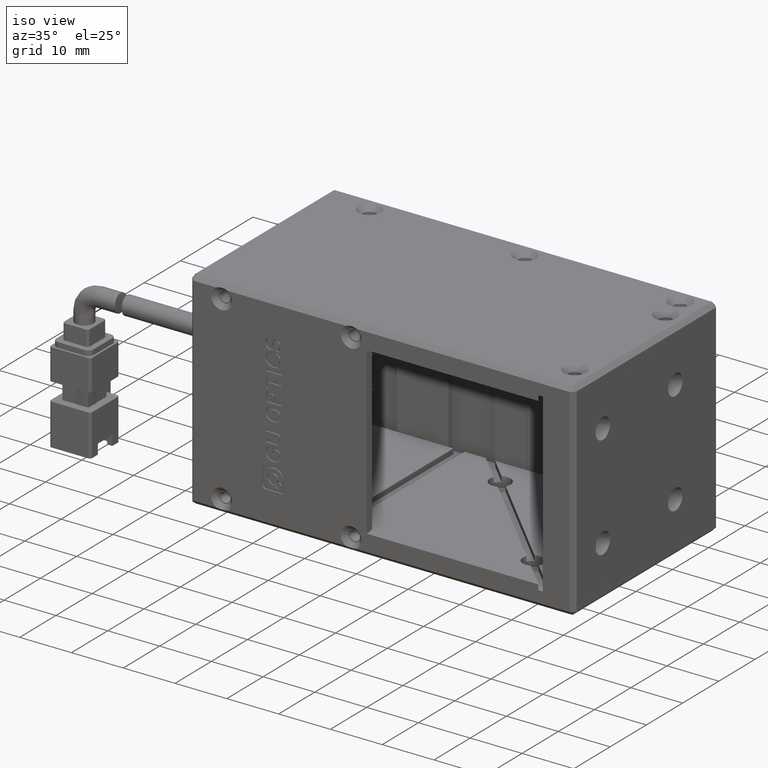
[diagram: clean part render]
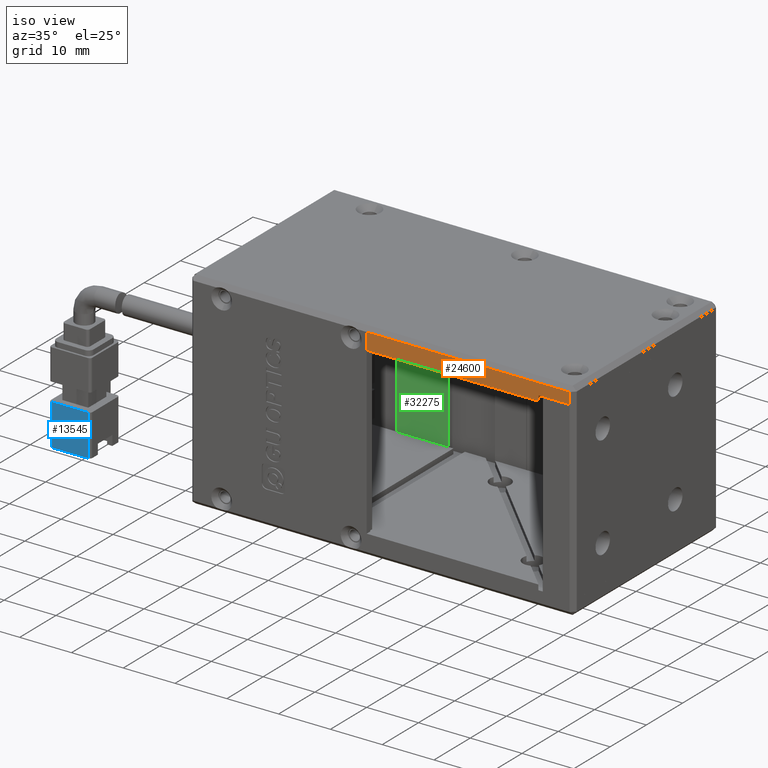
[diagram: same view with three faces highlighted in distinct colors, each labeled with its STEP entity id]
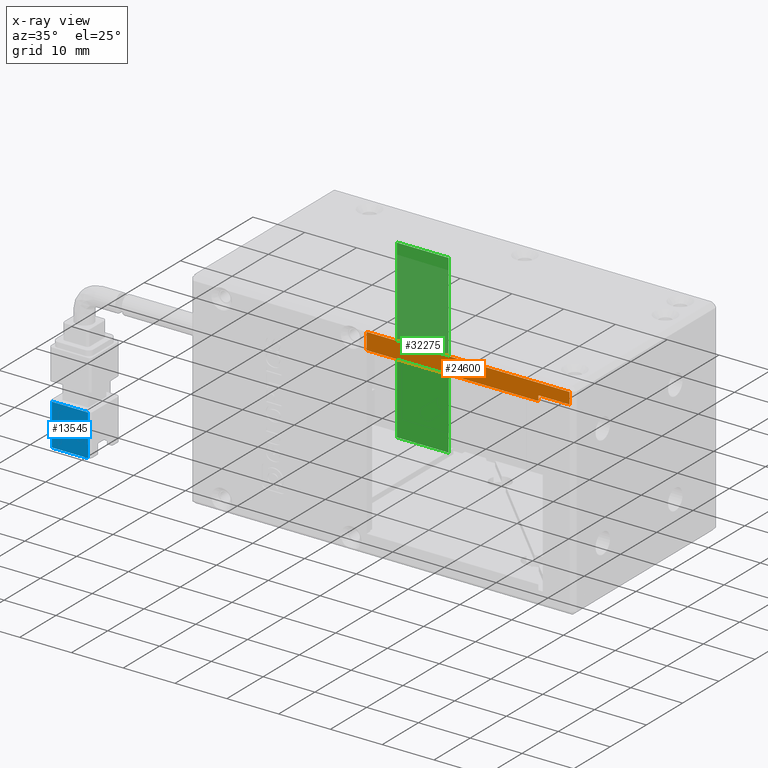
[diagram: x-ray of the same camera — body ghosted, the three highlighted faces saturated]
A machine part, iso view with three faces highlighted in distinct colors.
The next image is the same camera in x-ray (body ghosted, the three faces saturated) — at least one of them is partly hidden behind the body in this view.
Their STEP definitions:

[orange] entity #24600 — the highlighted planar face has unit normal (0, 1, -0).
#774 = CARTESIAN_POINT ( 'NONE',  ( -10.23777979801202800, -6.818613977539940600, 36.00000000000955000 ) ) ;
#1611 = CARTESIAN_POINT ( 'NONE',  ( 28.96222020198797200, -6.818613977539942400, 37.00000000000955000 ) ) ;
#2336 = EDGE_CURVE ( 'NONE', #6055, #7279, #17371, .T. ) ;
#2411 = FACE_OUTER_BOUND ( 'NONE', #22106, .T. ) ;
#2543 = CARTESIAN_POINT ( 'NONE',  ( -41.23777979801202100, -6.818613977539942400, 39.20000000000954500 ) ) ;
#2601 = LINE ( 'NONE', #13845, #30001 ) ;
#2617 = VERTEX_POINT ( 'NONE', #13790 ) ;
#2763 = LINE ( 'NONE', #1611, #12350 ) ;
#2794 = EDGE_CURVE ( 'NONE', #2617, #29749, #2763, .T. ) ;
#3311 = ORIENTED_EDGE ( 'NONE', *, *, #26105, .T. ) ;
#3782 = DIRECTION ( 'NONE',  ( 0.0000000000000000000, 0.0000000000000000000, 1.000000000000000000 ) ) ;
#4800 = EDGE_CURVE ( 'NONE', #24811, #6055, #2601, .T. ) ;
#5612 = LINE ( 'NONE', #17010, #6490 ) ;
#6055 = VERTEX_POINT ( 'NONE', #774 ) ;
#6490 = VECTOR ( 'NONE', #3782, 1000.000000000000000 ) ;
#7279 = VERTEX_POINT ( 'NONE', #31139 ) ;
#7761 = LINE ( 'NONE', #11213, #21812 ) ;
#11213 = CARTESIAN_POINT ( 'NONE',  ( 29.76222020198797200, -6.818613977539942400, 37.00000000000955000 ) ) ;
#11284 = CARTESIAN_POINT ( 'NONE',  ( 28.96222020198796800, -6.818613977539943200, 37.00000000000955000 ) ) ;
#11814 = DIRECTION ( 'NONE',  ( 0.0000000000000000000, 1.000000000000000000, -0.0000000000000000000 ) ) ;
#12350 = VECTOR ( 'NONE', #17475, 1000.000000000000000 ) ;
#13538 = ORIENTED_EDGE ( 'NONE', *, *, #4800, .F. ) ;
#13790 = CARTESIAN_POINT ( 'NONE',  ( 28.96222020198797900, -6.818613977539942400, 39.20000000000954500 ) ) ;
#13845 = CARTESIAN_POINT ( 'NONE',  ( 29.76222020198797200, -6.818613977539942400, 36.00000000000955000 ) ) ;
#14351 = PLANE ( 'NONE',  #33500 ) ;
#15119 = LINE ( 'NONE', #2543, #22208 ) ;
#16394 = DIRECTION ( 'NONE',  ( -1.000000000000000000, 0.0000000000000000000, -0.0000000000000000000 ) ) ;
#16524 = DIRECTION ( 'NONE',  ( -1.000000000000000000, 0.0000000000000000000, -0.0000000000000000000 ) ) ;
#17010 = CARTESIAN_POINT ( 'NONE',  ( 22.92374257090294500, -6.818613977539942400, 36.00000000000955000 ) ) ;
#17371 = LINE ( 'NONE', #27731, #24408 ) ;
#17475 = DIRECTION ( 'NONE',  ( -0.0000000000000000000, -0.0000000000000000000, -1.000000000000000000 ) ) ;
#17611 = EDGE_CURVE ( 'NONE', #2617, #7279, #15119, .T. ) ;
#18252 = ORIENTED_EDGE ( 'NONE', *, *, #26525, .F. ) ;
#20986 = DIRECTION ( 'NONE',  ( -1.000000000000000000, 0.0000000000000000000, -0.0000000000000000000 ) ) ;
#21812 = VECTOR ( 'NONE', #16394, 1000.000000000000000 ) ;
#22106 = EDGE_LOOP ( 'NONE', ( #23354, #31540, #13538, #3311, #18252, #33396 ) ) ;
#22208 = VECTOR ( 'NONE', #20986, 1000.000000000000000 ) ;
#23354 = ORIENTED_EDGE ( 'NONE', *, *, #17611, .T. ) ;
#24408 = VECTOR ( 'NONE', #33224, 1000.000000000000000 ) ;
#24600 = ADVANCED_FACE ( 'NONE', ( #2411 ), #14351, .F. ) ;
#24811 = VERTEX_POINT ( 'NONE', #28818 ) ;
#26105 = EDGE_CURVE ( 'NONE', #24811, #27619, #5612, .T. ) ;
#26525 = EDGE_CURVE ( 'NONE', #29749, #27619, #7761, .T. ) ;
#27005 = CARTESIAN_POINT ( 'NONE',  ( 22.92374257090293100, -6.818613977539940600, 37.00000000000955000 ) ) ;
#27619 = VERTEX_POINT ( 'NONE', #27005 ) ;
#27683 = CARTESIAN_POINT ( 'NONE',  ( 29.76222020198797200, -6.818613977539942400, 37.00000000000955000 ) ) ;
#27731 = CARTESIAN_POINT ( 'NONE',  ( -10.23777979801202800, -6.818613977539942400, 37.00000000000955000 ) ) ;
#28818 = CARTESIAN_POINT ( 'NONE',  ( 22.92374257090294200, -6.818613977539941500, 36.00000000000955000 ) ) ;
#29749 = VERTEX_POINT ( 'NONE', #11284 ) ;
#30001 = VECTOR ( 'NONE', #16524, 1000.000000000000000 ) ;
#30359 = DIRECTION ( 'NONE',  ( 0.0000000000000000000, 0.0000000000000000000, 1.000000000000000000 ) ) ;
#31139 = CARTESIAN_POINT ( 'NONE',  ( -10.23777979801202100, -6.818613977539942400, 39.20000000000954500 ) ) ;
#31540 = ORIENTED_EDGE ( 'NONE', *, *, #2336, .F. ) ;
#33224 = DIRECTION ( 'NONE',  ( 0.0000000000000000000, 0.0000000000000000000, 1.000000000000000000 ) ) ;
#33396 = ORIENTED_EDGE ( 'NONE', *, *, #2794, .F. ) ;
#33500 = AXIS2_PLACEMENT_3D ( 'NONE', #27683, #11814, #30359 ) ;

[blue] entity #13545 — the highlighted planar face has unit normal (-0, 1, 0).
#1623 = PLANE ( 'NONE',  #30233 ) ;
#2194 = CARTESIAN_POINT ( 'NONE',  ( -63.13284929583380700, -8.118613977539945700, 3.500000000009592800 ) ) ;
#2670 = ORIENTED_EDGE ( 'NONE', *, *, #32518, .F. ) ;
#4879 = DIRECTION ( 'NONE',  ( 0.0000000000000000000, -1.089862896423737300E-016, 1.000000000000000000 ) ) ;
#4929 = ORIENTED_EDGE ( 'NONE', *, *, #9812, .F. ) ;
#5729 = EDGE_CURVE ( 'NONE', #24546, #14745, #33200, .T. ) ;
#6369 = FACE_OUTER_BOUND ( 'NONE', #31169, .T. ) ;
#7237 = CARTESIAN_POINT ( 'NONE',  ( -70.13284929583380700, -8.118613977539945700, 3.500000000009592800 ) ) ;
#8867 = LINE ( 'NONE', #34099, #15831 ) ;
#9332 = VECTOR ( 'NONE', #19585, 1000.000000000000000 ) ;
#9812 = EDGE_CURVE ( 'NONE', #14745, #26809, #10544, .T. ) ;
#10329 = ORIENTED_EDGE ( 'NONE', *, *, #31453, .F. ) ;
#10544 = LINE ( 'NONE', #7237, #23776 ) ;
#11723 = CARTESIAN_POINT ( 'NONE',  ( -63.13284929583380700, -8.118613977539947500, 11.50000000000953000 ) ) ;
#13545 = ADVANCED_FACE ( 'NONE', ( #6369 ), #1623, .F. ) ;
#14412 = VERTEX_POINT ( 'NONE', #31308 ) ;
#14745 = VERTEX_POINT ( 'NONE', #33527 ) ;
#15149 = CARTESIAN_POINT ( 'NONE',  ( -63.13284929583380700, -8.118613977539945700, 3.500000000009592800 ) ) ;
#15831 = VECTOR ( 'NONE', #26269, 1000.000000000000000 ) ;
#19585 = DIRECTION ( 'NONE',  ( 1.000000000000000000, 4.879110900817679200E-017, 5.317561938337786000E-033 ) ) ;
#20744 = DIRECTION ( 'NONE',  ( -4.879110900817679200E-017, 1.000000000000000000, 1.089862896423737300E-016 ) ) ;
#23776 = VECTOR ( 'NONE', #25687, 1000.000000000000000 ) ;
#24546 = VERTEX_POINT ( 'NONE', #27242 ) ;
#25687 = DIRECTION ( 'NONE',  ( 0.0000000000000000000, -1.089862896423737300E-016, 1.000000000000000000 ) ) ;
#26269 = DIRECTION ( 'NONE',  ( -0.0000000000000000000, 1.089862896423737300E-016, -1.000000000000000000 ) ) ;
#26809 = VERTEX_POINT ( 'NONE', #28282 ) ;
#27242 = CARTESIAN_POINT ( 'NONE',  ( -63.13284929583383600, -8.118613977539945700, 3.500000000009592800 ) ) ;
#28282 = CARTESIAN_POINT ( 'NONE',  ( -70.13284929583380700, -8.118613977539947500, 11.50000000000953000 ) ) ;
#30233 = AXIS2_PLACEMENT_3D ( 'NONE', #2194, #20744, #4879 ) ;
#30947 = DIRECTION ( 'NONE',  ( -1.000000000000000000, -4.879110900817679200E-017, -5.317561938337786000E-033 ) ) ;
#31169 = EDGE_LOOP ( 'NONE', ( #4929, #32908, #2670, #10329 ) ) ;
#31267 = LINE ( 'NONE', #11723, #9332 ) ;
#31308 = CARTESIAN_POINT ( 'NONE',  ( -63.13284929583383600, -8.118613977539947500, 11.50000000000955100 ) ) ;
#31453 = EDGE_CURVE ( 'NONE', #26809, #14412, #31267, .T. ) ;
#32334 = VECTOR ( 'NONE', #30947, 1000.000000000000000 ) ;
#32518 = EDGE_CURVE ( 'NONE', #14412, #24546, #8867, .T. ) ;
#32908 = ORIENTED_EDGE ( 'NONE', *, *, #5729, .F. ) ;
#33200 = LINE ( 'NONE', #15149, #32334 ) ;
#33527 = CARTESIAN_POINT ( 'NONE',  ( -70.13284929583380700, -8.118613977539945700, 3.500000000009579000 ) ) ;
#34099 = CARTESIAN_POINT ( 'NONE',  ( -63.13284929583386400, -8.118613977539945700, 3.500000000009592800 ) ) ;

[green] entity #32275 — the highlighted planar face has unit normal (0, 1, -0).
#2006 = EDGE_CURVE ( 'NONE', #2896, #30500, #14398, .T. ) ;
#2896 = VERTEX_POINT ( 'NONE', #4846 ) ;
#3060 = EDGE_CURVE ( 'NONE', #30500, #15014, #14732, .T. ) ;
#4311 = ORIENTED_EDGE ( 'NONE', *, *, #24089, .T. ) ;
#4372 = DIRECTION ( 'NONE',  ( -2.775557561562891400E-017, -5.207109099787108300E-050, -1.000000000000000000 ) ) ;
#4760 = DIRECTION ( 'NONE',  ( 2.775557561562891400E-017, 5.207109099787108300E-050, 1.000000000000000000 ) ) ;
#4846 = CARTESIAN_POINT ( 'NONE',  ( -18.23777979801204200, 27.18138602246007100, 3.000000000009554100 ) ) ;
#6571 = CARTESIAN_POINT ( 'NONE',  ( -41.23777979801202100, 27.18138602246007800, 3.000000000009554100 ) ) ;
#7556 = CARTESIAN_POINT ( 'NONE',  ( -28.23777979801201400, 27.18138602246007100, 3.000000000009554100 ) ) ;
#9223 = DIRECTION ( 'NONE',  ( 1.000000000000000000, -1.720282077997869500E-016, -2.775557561562891400E-017 ) ) ;
#9258 = LINE ( 'NONE', #20265, #23304 ) ;
#10863 = DIRECTION ( 'NONE',  ( -1.000000000000000000, 4.956352788505163400E-017, 2.775557561562891400E-017 ) ) ;
#12804 = ORIENTED_EDGE ( 'NONE', *, *, #2006, .F. ) ;
#14153 = CARTESIAN_POINT ( 'NONE',  ( -41.23777979801202100, 27.18138602246007100, 37.00000000000955000 ) ) ;
#14398 = LINE ( 'NONE', #26690, #28492 ) ;
#14732 = LINE ( 'NONE', #20654, #20963 ) ;
#15014 = VERTEX_POINT ( 'NONE', #26498 ) ;
#15758 = CARTESIAN_POINT ( 'NONE',  ( -18.23777979801204200, 27.18138602246007100, 37.00000000000955000 ) ) ;
#17585 = VERTEX_POINT ( 'NONE', #15758 ) ;
#19742 = ORIENTED_EDGE ( 'NONE', *, *, #3060, .F. ) ;
#20265 = CARTESIAN_POINT ( 'NONE',  ( -18.23777979801204200, 27.18138602246007500, 3.000000000009554100 ) ) ;
#20654 = CARTESIAN_POINT ( 'NONE',  ( -28.23777979801201400, 27.18138602246007500, 3.000000000009554100 ) ) ;
#20963 = VECTOR ( 'NONE', #4760, 1000.000000000000000 ) ;
#22026 = LINE ( 'NONE', #14153, #29053 ) ;
#23304 = VECTOR ( 'NONE', #4372, 1000.000000000000000 ) ;
#24089 = EDGE_CURVE ( 'NONE', #17585, #15014, #22026, .T. ) ;
#24313 = EDGE_LOOP ( 'NONE', ( #19742, #12804, #26609, #4311 ) ) ;
#25007 = DIRECTION ( 'NONE',  ( 1.720282077997869500E-016, 1.000000000000000000, -4.774741929608110300E-033 ) ) ;
#26498 = CARTESIAN_POINT ( 'NONE',  ( -28.23777979801201400, 27.18138602246007100, 37.00000000000955000 ) ) ;
#26609 = ORIENTED_EDGE ( 'NONE', *, *, #32816, .F. ) ;
#26690 = CARTESIAN_POINT ( 'NONE',  ( -41.23777979801202100, 27.18138602246007100, 3.000000000009554100 ) ) ;
#26937 = AXIS2_PLACEMENT_3D ( 'NONE', #6571, #25007, #9223 ) ;
#27590 = PLANE ( 'NONE',  #26937 ) ;
#27767 = FACE_OUTER_BOUND ( 'NONE', #24313, .T. ) ;
#28492 = VECTOR ( 'NONE', #10863, 1000.000000000000000 ) ;
#29053 = VECTOR ( 'NONE', #30056, 1000.000000000000000 ) ;
#30056 = DIRECTION ( 'NONE',  ( -1.000000000000000000, 4.956352788505163400E-017, 2.775557561562891400E-017 ) ) ;
#30500 = VERTEX_POINT ( 'NONE', #7556 ) ;
#32275 = ADVANCED_FACE ( 'NONE', ( #27767 ), #27590, .F. ) ;
#32816 = EDGE_CURVE ( 'NONE', #17585, #2896, #9258, .T. ) ;